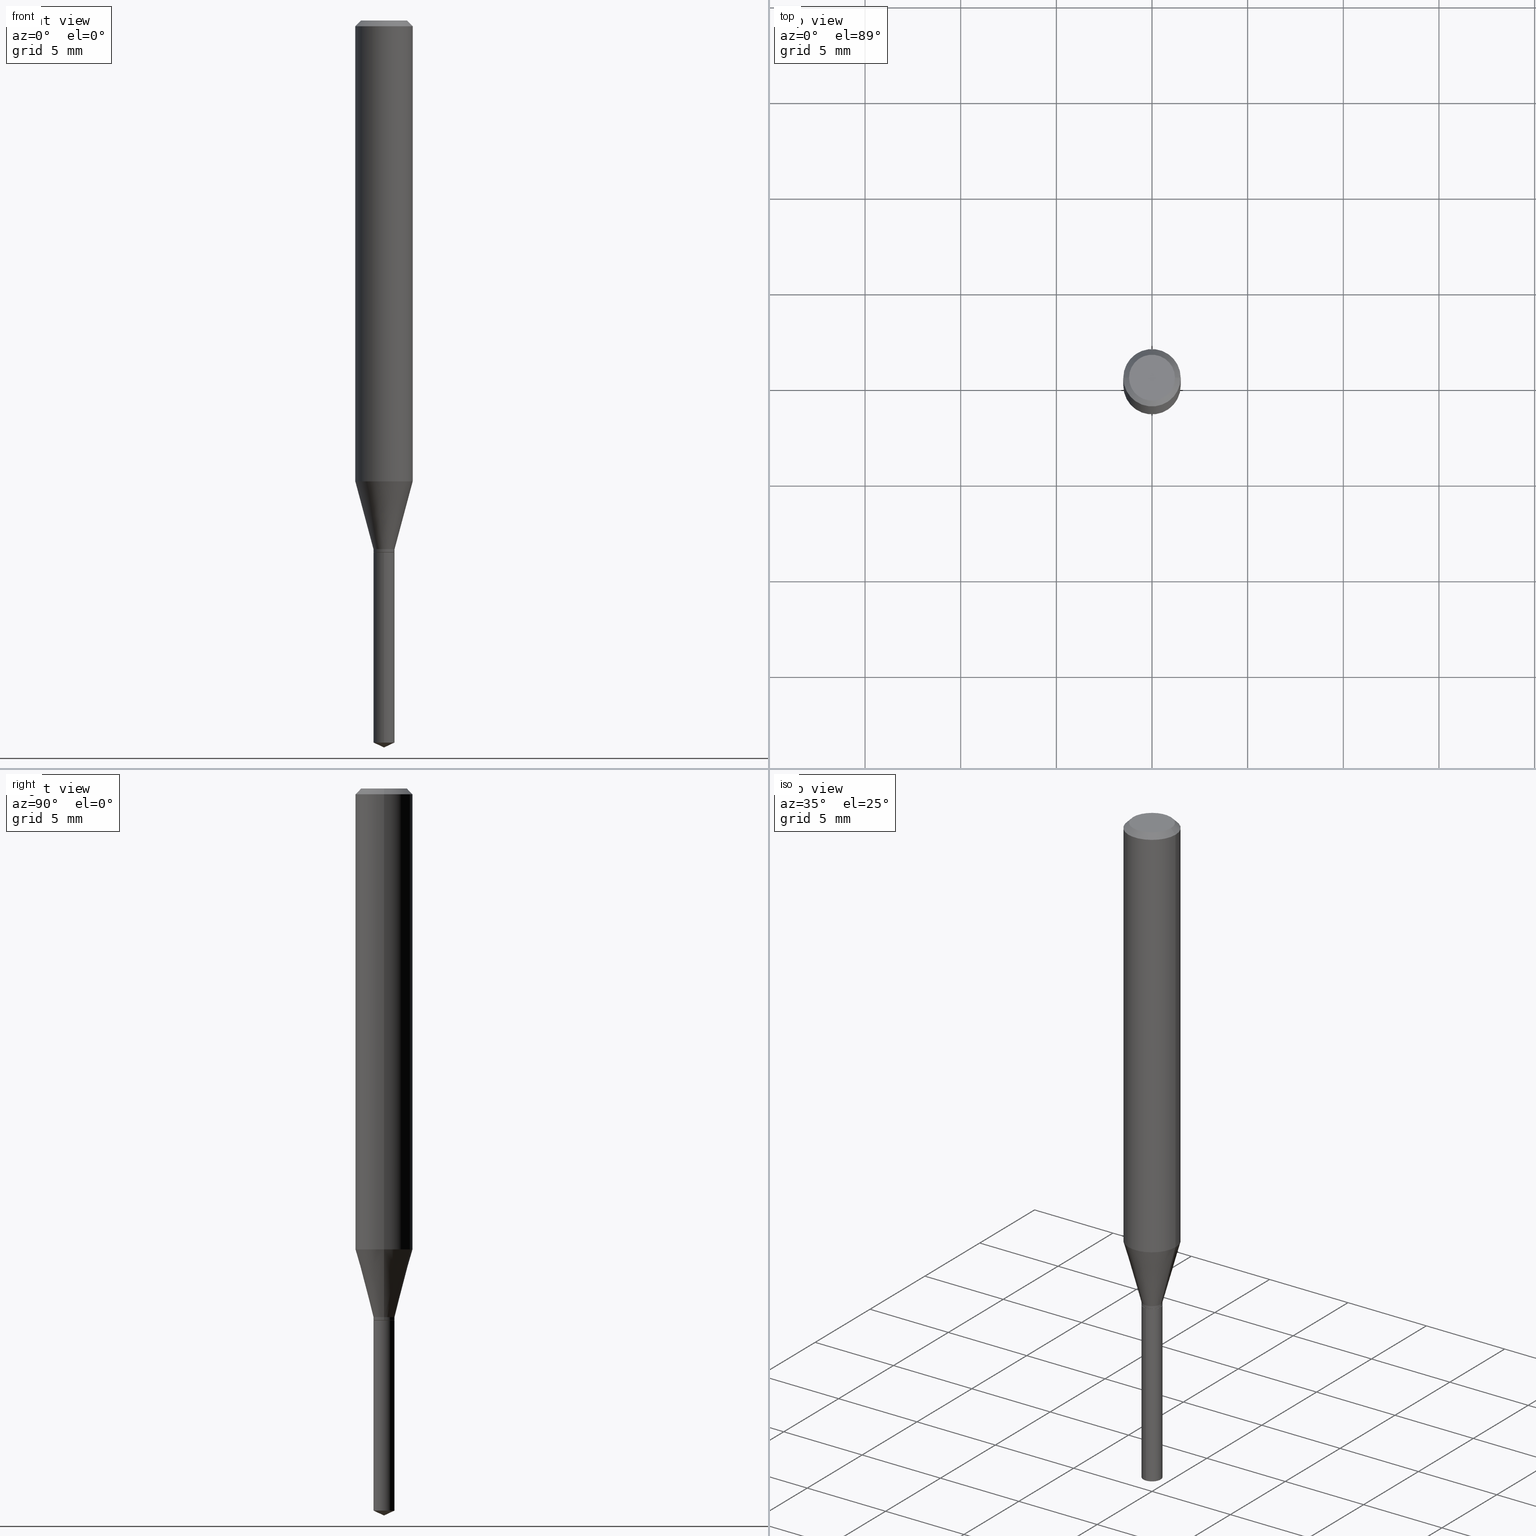
[diagram: canonical four-view strip — front | top / right | iso, engineering-drawing reading convention]
A machine part, canonical four-view strip (front | top / right | iso — engineering-drawing reading convention). The complete STEP part file that produces these views, byte-faithful:
ISO-10303-21;
HEADER;
FILE_DESCRIPTION (( 'STEP AP203' ),
    '1' );
FILE_NAME ('07492.STEP',
    '2024-04-23T22:03:44',
    ( '' ),
    ( '' ),
    'SwSTEP 2.0',
    'SolidWorks 2023',
    '' );
FILE_SCHEMA (( 'CONFIG_CONTROL_DESIGN' ));
ENDSEC;

DATA;
#1 = APPLICATION_CONTEXT ( 'configuration controlled 3d designs of mechanical parts and assemblies' ) ;
#2 = DIRECTION ( 'NONE',  ( 0.7071067811865454633, -7.319954787623248157E-15, -0.7071067811865495711 ) ) ;
#3 = CARTESIAN_POINT ( 'NONE',  ( 2.675342873966538993E-29, -3.819680584694400481E-15, -1.093999999999999861 ) ) ;
#4 = EDGE_CURVE ( 'NONE', #451, #399, #379, .T. ) ;
#5 = AXIS2_PLACEMENT_3D ( 'NONE', #93, #465, #201 ) ;
#6 = FACE_OUTER_BOUND ( 'NONE', #94, .T. ) ;
#7 = DIRECTION ( 'NONE',  ( -2.445470214571802116E-29, 3.491479321953280158E-15, 1.000000000000000000 ) ) ;
#8 = SECURITY_CLASSIFICATION_LEVEL ( 'unclassified' ) ;
#9 = CYLINDRICAL_SURFACE ( 'NONE', #296, 0.02165000000000000258 ) ;
#10 = ORIENTED_EDGE ( 'NONE', *, *, #193, .T. ) ;
#11 = CIRCLE ( 'NONE', #335, 0.02165000000000000258 ) ;
#12 = VECTOR ( 'NONE', #354, 39.37007874015748854 ) ;
#13 = CC_DESIGN_PERSON_AND_ORGANIZATION_ASSIGNMENT ( #431, #50, ( #436 ) ) ;
#14 = DIRECTION ( 'NONE',  ( 1.000000000000000000, -6.982962677686266711E-15, 0.000000000000000000 ) ) ;
#15 = ORIENTED_EDGE ( 'NONE', *, *, #485, .F. ) ;
#16 = CARTESIAN_POINT ( 'NONE',  ( -0.02165000000000000258, -3.655373638385810145E-15, -1.093999999999999861 ) ) ;
#17 = ORIENTED_EDGE ( 'NONE', *, *, #95, .F. ) ;
#18 = EDGE_CURVE ( 'NONE', #301, #359, #177, .T. ) ;
#19 = FACE_OUTER_BOUND ( 'NONE', #125, .T. ) ;
#20 = ORIENTED_EDGE ( 'NONE', *, *, #27, .T. ) ;
#21 = EDGE_CURVE ( 'NONE', #301, #399, #88, .T. ) ;
#22 = VECTOR ( 'NONE', #67, 39.37007874015748143 ) ;
#23 = CARTESIAN_POINT ( 'NONE',  ( 4.132873053354867254E-48, -5.900647395337818946E-34, -1.690012582823346072E-19 ) ) ;
#24 = AXIS2_PLACEMENT_3D ( 'NONE', #120, #424, #151 ) ;
#25 = AXIS2_PLACEMENT_3D ( 'NONE', #430, #91, #470 ) ;
#26 = ORIENTED_EDGE ( 'NONE', *, *, #107, .F. ) ;
#27 = EDGE_CURVE ( 'NONE', #411, #396, #64, .T. ) ;
#28 = DIRECTION ( 'NONE',  ( 1.000000000000000000, -6.982962677686266711E-15, 4.876176775795936353E-29 ) ) ;
#29 = ORIENTED_EDGE ( 'NONE', *, *, #230, .F. ) ;
#30 = ORIENTED_EDGE ( 'NONE', *, *, #425, .F. ) ;
#31 = VECTOR ( 'NONE', #249, 39.37007874015748143 ) ;
#32 = AXIS2_PLACEMENT_3D ( 'NONE', #268, #185, #37 ) ;
#33 = AXIS2_PLACEMENT_3D ( 'NONE', #105, #417, #369 ) ;
#34 = DIRECTION ( 'NONE',  ( -2.445468806185136597E-29, 3.491481338843145583E-15, 1.000000000000000000 ) ) ;
#35 = DIRECTION ( 'NONE',  ( 6.439704144417045341E-15, 0.9063077870366544886, 0.4226182617406898934 ) ) ;
#36 = CARTESIAN_POINT ( 'NONE',  ( 0.04724000000000000421, -3.852183633974369838E-16, -3.380025165621689721E-19 ) ) ;
#37 = DIRECTION ( 'NONE',  ( -6.982962677686265922E-15, -1.000000000000000000, 0.000000000000000000 ) ) ;
#38 = APPROVAL_ROLE ( '' ) ;
#39 = DIRECTION ( 'NONE',  ( 1.000000000000000000, -6.982962677686265922E-15, 4.876176775795935793E-29 ) ) ;
#40 = CONICAL_SURFACE ( 'NONE', #162, 84.42940631927551465, 1.134464013796321336 ) ;
#41 = AXIS2_PLACEMENT_3D ( 'NONE', #476, #73, #101 ) ;
#42 = DIRECTION ( 'NONE',  ( -2.445470214571802116E-29, 3.491479321953280158E-15, 1.000000000000000000 ) ) ;
#43 = EDGE_CURVE ( 'NONE', #250, #411, #219, .T. ) ;
#44 = CARTESIAN_POINT ( 'NONE',  ( 2.660670061129428738E-29, -3.798731696661342438E-15, -1.088000000000000078 ) ) ;
#45 = CARTESIAN_POINT ( 'NONE',  ( 0.000000000000000000, 0.000000000000000000, 0.000000000000000000 ) ) ;
#46 = DIRECTION ( 'NONE',  ( 1.000000000000000000, -6.982962677686267499E-15, 0.000000000000000000 ) ) ;
#47 = MECHANICAL_CONTEXT ( 'NONE', #1, 'mechanical' ) ;
#48 = DIRECTION ( 'NONE',  ( -6.982962677686265922E-15, -1.000000000000000000, 6.309117768277745325E-15 ) ) ;
#49 = ORIENTED_EDGE ( 'NONE', *, *, #27, .F. ) ;
#50 = PERSON_AND_ORGANIZATION_ROLE ( 'creator' ) ;
#51 = EDGE_LOOP ( 'NONE', ( #26, #213, #264, #17 ) ) ;
#52 = APPROVAL_DATE_TIME ( #261, #118 ) ;
#53 = CONICAL_SURFACE ( 'NONE', #308, 0.02164999999999999564, 0.2617993877991499629 ) ;
#54 = AXIS2_PLACEMENT_3D ( 'NONE', #380, #34, #144 ) ;
#55 = FACE_OUTER_BOUND ( 'NONE', #471, .T. ) ;
#56 = ORIENTED_EDGE ( 'NONE', *, *, #244, .T. ) ;
#57 = CALENDAR_DATE ( 2024, 23, 4 ) ;
#58 = DIRECTION ( 'NONE',  ( -2.445468806185136597E-29, 3.491481338843145583E-15, 1.000000000000000000 ) ) ;
#59 = ORIENTED_EDGE ( 'NONE', *, *, #414, .F. ) ;
#60 = DIRECTION ( 'NONE',  ( 1.000000000000000000, -6.982962677686269866E-15, 0.000000000000000000 ) ) ;
#61 = ORIENTED_EDGE ( 'NONE', *, *, #409, .T. ) ;
#62 = VECTOR ( 'NONE', #156, 39.37007874015748143 ) ;
#63 = CARTESIAN_POINT ( 'NONE',  ( -0.05905000000000011628, -2.891819784135979347E-15, -0.9484212997969238002 ) ) ;
#64 = LINE ( 'NONE', #453, #138 ) ;
#65 = EDGE_CURVE ( 'NONE', #257, #250, #376, .T. ) ;
#66 = ADVANCED_BREP_SHAPE_REPRESENTATION ( '07492', ( #83, #401, #124 ), #368 ) ;
#67 = DIRECTION ( 'NONE',  ( -2.445470214571802396E-29, 3.491479321953280158E-15, 1.000000000000000000 ) ) ;
#68 = CARTESIAN_POINT ( 'NONE',  ( -0.02164999999999999564, -3.644899194369280335E-15, -1.088000000000000078 ) ) ;
#69 = DIRECTION ( 'NONE',  ( -2.445470214571802116E-29, 3.491479321953280158E-15, 1.000000000000000000 ) ) ;
#70 = EDGE_CURVE ( 'NONE', #399, #375, #298, .T. ) ;
#71 = VERTEX_POINT ( 'NONE', #137 ) ;
#72 = CC_DESIGN_APPROVAL ( #118, ( #189 ) ) ;
#73 = DIRECTION ( 'NONE',  ( 2.445470214571801836E-29, -3.491479321953280158E-15, -1.000000000000000000 ) ) ;
#74 = CARTESIAN_POINT ( 'NONE',  ( 3.658668015054778287E-29, -5.223602213574301462E-15, -1.496099999999999985 ) ) ;
#75 = PRODUCT_RELATED_PRODUCT_CATEGORY ( 'detail', '', ( #293 ) ) ;
#76 = CALENDAR_DATE ( 2024, 23, 4 ) ;
#77 = LINE ( 'NONE', #231, #31 ) ;
#78 = PERSON_AND_ORGANIZATION_ROLE ( 'creator' ) ;
#79 = DIRECTION ( 'NONE',  ( -6.982962677686267499E-15, -1.000000000000000000, 3.520397390770404961E-15 ) ) ;
#80 = AXIS2_PLACEMENT_3D ( 'NONE', #317, #204, #99 ) ;
#81 = LOCAL_TIME ( 18, 3, 44.00000000000000000, #245 ) ;
#82 = ADVANCED_FACE ( 'NONE', ( #445 ), #454, .T. ) ;
#83 = MANIFOLD_SOLID_BREP ( 'Body-Move/Copy2[1]', #194 ) ;
#84 = FACE_OUTER_BOUND ( 'NONE', #183, .T. ) ;
#85 = LINE ( 'NONE', #234, #383 ) ;
#86 = LINE ( 'NONE', #459, #412 ) ;
#87 = ADVANCED_FACE ( 'NONE', ( #6 ), #130, .T. ) ;
#88 = CIRCLE ( 'NONE', #32, 0.02164999999999999564 ) ;
#89 = DIRECTION ( 'NONE',  ( 0.000000000000000000, 0.000000000000000000, 1.000000000000000000 ) ) ;
#90 = CARTESIAN_POINT ( 'NONE',  ( -1.511811419718713449E-16, -0.02165000000000518940, -1.486004439200944383 ) ) ;
#91 = DIRECTION ( 'NONE',  ( -2.445468806185136597E-29, 3.491481338843145583E-15, 1.000000000000000000 ) ) ;
#92 = VERTEX_POINT ( 'NONE', #382 ) ;
#93 = CARTESIAN_POINT ( 'NONE',  ( 8.265746106709734507E-48, -1.180129479067563789E-33, -3.380025165646692144E-19 ) ) ;
#94 = EDGE_LOOP ( 'NONE', ( #255, #305, #15 ) ) ;
#95 = EDGE_CURVE ( 'NONE', #355, #71, #148, .T. ) ;
#96 = CIRCLE ( 'NONE', #33, 0.04724000000000000421 ) ;
#97 = CARTESIAN_POINT ( 'NONE',  ( 2.660670061129428738E-29, -3.798731696661342438E-15, -1.088000000000000078 ) ) ;
#98 = ORIENTED_EDGE ( 'NONE', *, *, #262, .T. ) ;
#99 = DIRECTION ( 'NONE',  ( 1.000000000000000000, -6.982962677686268288E-15, 0.000000000000000000 ) ) ;
#100 = VERTEX_POINT ( 'NONE', #426 ) ;
#101 = DIRECTION ( 'NONE',  ( 6.982962677686265922E-15, 1.000000000000000000, -3.491479321953280158E-15 ) ) ;
#102 = ORIENTED_EDGE ( 'NONE', *, *, #203, .T. ) ;
#103 = AXIS2_PLACEMENT_3D ( 'NONE', #457, #153, #158 ) ;
#104 = ORIENTED_EDGE ( 'NONE', *, *, #43, .F. ) ;
#105 = CARTESIAN_POINT ( 'NONE',  ( 8.265746106709734507E-48, -1.180129479067563789E-33, -3.380025165646692144E-19 ) ) ;
#106 = ORIENTED_EDGE ( 'NONE', *, *, #230, .T. ) ;
#107 = EDGE_CURVE ( 'NONE', #338, #355, #85, .T. ) ;
#108 = APPLICATION_CONTEXT ( 'configuration controlled 3d designs of mechanical parts and assemblies' ) ;
#109 = ORIENTED_EDGE ( 'NONE', *, *, #4, .T. ) ;
#110 = DIRECTION ( 'NONE',  ( -2.445468806185136877E-29, 3.491481338843145188E-15, 1.000000000000000000 ) ) ;
#111 = CIRCLE ( 'NONE', #141, 0.05905000000000011628 ) ;
#112 = APPLICATION_PROTOCOL_DEFINITION ( 'international standard', 'config_control_design', 1994, #108 ) ;
#113 = FACE_OUTER_BOUND ( 'NONE', #145, .T. ) ;
#114 = COORDINATED_UNIVERSAL_TIME_OFFSET ( 5, 0, .BEHIND. ) ;
#115 = DIRECTION ( 'NONE',  ( -2.445468806185136597E-29, 3.491481338843145583E-15, 1.000000000000000000 ) ) ;
#116 = ADVANCED_FACE ( 'NONE', ( #192 ), #152, .F. ) ;
#117 = DIRECTION ( 'NONE',  ( -2.445468806185136597E-29, 3.491481338843145583E-15, 1.000000000000000000 ) ) ;
#118 = APPROVAL ( #258, 'UNSPECIFIED' ) ;
#119 = DIRECTION ( 'NONE',  ( -1.000000000000000000, 6.982962677686265922E-15, 0.000000000000000000 ) ) ;
#120 = CARTESIAN_POINT ( 'NONE',  ( 2.676565608369632355E-29, -3.821426325363822773E-15, -1.094500000000000028 ) ) ;
#121 = CARTESIAN_POINT ( 'NONE',  ( -0.02114999999999999172, -3.668497309576450368E-15, -1.094500000000000028 ) ) ;
#122 = DATE_AND_TIME ( #466, #290 ) ;
#123 = APPROVAL_PERSON_ORGANIZATION ( #394, #227, #38 ) ;
#124 = AXIS2_PLACEMENT_3D ( 'NONE', #45, #89, #285 ) ;
#125 = EDGE_LOOP ( 'NONE', ( #221, #61 ) ) ;
#126 = DESIGN_CONTEXT ( 'detailed design', #108, 'design' ) ;
#127 = DIRECTION ( 'NONE',  ( -1.000000000000000000, 6.982962677686265922E-15, -4.876176775795935793E-29 ) ) ;
#128 = CARTESIAN_POINT ( 'NONE',  ( -0.02164999999999999564, -3.655373638385810145E-15, -1.088000000000000078 ) ) ;
#129 = SHAPE_DEFINITION_REPRESENTATION ( #487, #66 ) ;
#130 = CONICAL_SURFACE ( 'NONE', #178, 84.42940631927551465, 1.134464013796321336 ) ;
#131 = FACE_OUTER_BOUND ( 'NONE', #477, .T. ) ;
#132 = EDGE_LOOP ( 'NONE', ( #10, #167 ) ) ;
#133 = EDGE_CURVE ( 'NONE', #71, #355, #11, .T. ) ;
#134 = PLANE ( 'NONE',  #41 ) ;
#135 = ORIENTED_EDGE ( 'NONE', *, *, #65, .F. ) ;
#136 = DIRECTION ( 'NONE',  ( 1.000000000000000000, -6.982962677686269866E-15, 0.000000000000000000 ) ) ;
#137 = CARTESIAN_POINT ( 'NONE',  ( 0.02165000000000000258, -3.970861726666308212E-15, -1.093999999999999861 ) ) ;
#138 = VECTOR ( 'NONE', #110, 39.37007874015748143 ) ;
#139 = CONICAL_SURFACE ( 'NONE', #103, 0.05905000000000000526, 0.7853981633974453924 ) ;
#140 = CARTESIAN_POINT ( 'NONE',  ( 3.658664905062460986E-29, -5.223606628546217219E-15, -1.496099999999999985 ) ) ;
#141 = AXIS2_PLACEMENT_3D ( 'NONE', #441, #58, #14 ) ;
#142 = ORIENTED_EDGE ( 'NONE', *, *, #95, .T. ) ;
#143 = EDGE_CURVE ( 'NONE', #355, #250, #421, .T. ) ;
#144 = DIRECTION ( 'NONE',  ( 1.000000000000000000, -6.982962677686269077E-15, 0.000000000000000000 ) ) ;
#145 = EDGE_LOOP ( 'NONE', ( #361, #109, #147 ) ) ;
#146 = ORIENTED_EDGE ( 'NONE', *, *, #409, .F. ) ;
#147 = ORIENTED_EDGE ( 'NONE', *, *, #21, .F. ) ;
#148 = CIRCLE ( 'NONE', #419, 0.02165000000000000258 ) ;
#149 = CONICAL_SURFACE ( 'NONE', #25, 0.02114999999999999172, 0.7853981633972860754 ) ;
#150 = ADVANCED_FACE ( 'NONE', ( #84 ), #306, .T. ) ;
#151 = DIRECTION ( 'NONE',  ( 1.000000000000000000, -6.982962677686269077E-15, 0.000000000000000000 ) ) ;
#152 = PLANE ( 'NONE',  #197 ) ;
#153 = DIRECTION ( 'NONE',  ( 2.445468806185136597E-29, -3.491481338843145583E-15, -1.000000000000000000 ) ) ;
#154 = CIRCLE ( 'NONE', #187, 0.05905000000000011628 ) ;
#155 = VECTOR ( 'NONE', #444, 39.37007874015748854 ) ;
#156 = DIRECTION ( 'NONE',  ( -2.445468806185136877E-29, 3.491481338843145188E-15, 1.000000000000000000 ) ) ;
#157 = LENGTH_MEASURE_WITH_UNIT ( LENGTH_MEASURE( 0.02539999999999999897 ), #328 );
#158 = DIRECTION ( 'NONE',  ( -1.000000000000000000, 6.982962677686265922E-15, 0.000000000000000000 ) ) ;
#159 = APPLICATION_PROTOCOL_DEFINITION ( 'international standard', 'config_control_design', 1994, #1 ) ;
#160 = CARTESIAN_POINT ( 'NONE',  ( 2.676565608369631794E-29, -3.821426325363822773E-15, -1.094499999999999806 ) ) ;
#161 = ORIENTED_EDGE ( 'NONE', *, *, #107, .T. ) ;
#162 = AXIS2_PLACEMENT_3D ( 'NONE', #388, #352, #269 ) ;
#163 = APPROVAL_PERSON_ORGANIZATION ( #397, #349, #343 ) ;
#164 = CARTESIAN_POINT ( 'NONE',  ( 0.02164999999999999564, -3.949912838633250169E-15, -1.088000000000000078 ) ) ;
#165 = EDGE_CURVE ( 'NONE', #250, #257, #318, .T. ) ;
#166 = CARTESIAN_POINT ( 'NONE',  ( 2.888098660104664642E-31, -4.123439461173780879E-17, -0.01181000000000007565 ) ) ;
#167 = ORIENTED_EDGE ( 'NONE', *, *, #425, .T. ) ;
#168 = DIRECTION ( 'NONE',  ( 1.000000000000000000, -6.982962677686267499E-15, 4.876176775795935232E-29 ) ) ;
#169 = PERSON_AND_ORGANIZATION ( #210, #344 ) ;
#170 = EDGE_CURVE ( 'NONE', #303, #396, #490, .T. ) ;
#171 = CIRCLE ( 'NONE', #304, 0.02114999999999999172 ) ;
#172 = CARTESIAN_POINT ( 'NONE',  ( 0.000000000000000000, 0.000000000000000000, 0.000000000000000000 ) ) ;
#173 = ORIENTED_EDGE ( 'NONE', *, *, #299, .T. ) ;
#174 = DIRECTION ( 'NONE',  ( -6.982962677686265922E-15, -1.000000000000000000, 6.309117768277745325E-15 ) ) ;
#175 = CARTESIAN_POINT ( 'NONE',  ( 1.538325022920883819E-16, 0.02164999999999617578, -1.094500000000000028 ) ) ;
#176 = CARTESIAN_POINT ( 'NONE',  ( 3.658667988020872822E-29, -5.223602213574301462E-15, -1.496099999999999985 ) ) ;
#177 = LINE ( 'NONE', #229, #22 ) ;
#178 = AXIS2_PLACEMENT_3D ( 'NONE', #196, #7, #79 ) ;
#179 = LINE ( 'NONE', #478, #280 ) ;
#180 = CIRCLE ( 'NONE', #5, 0.04724000000000000421 ) ;
#181 = DIRECTION ( 'NONE',  ( -0.2588190451025212391, 5.211531920934549464E-15, 0.9659258262890679791 ) ) ;
#182 = ADVANCED_FACE ( 'NONE', ( #350 ), #139, .T. ) ;
#183 = EDGE_LOOP ( 'NONE', ( #49, #418, #56, #433 ) ) ;
#184 = CALENDAR_DATE ( 2024, 23, 4 ) ;
#185 = DIRECTION ( 'NONE',  ( -2.445470214571802116E-29, 3.491479321953280158E-15, 1.000000000000000000 ) ) ;
#186 = COORDINATED_UNIVERSAL_TIME_OFFSET ( 5, 0, .BEHIND. ) ;
#187 = AXIS2_PLACEMENT_3D ( 'NONE', #314, #117, #275 ) ;
#188 = CARTESIAN_POINT ( 'NONE',  ( -0.02165000000000000258, 1.538325022920617085E-16, -1.064949447040187027E-30 ) ) ;
#189 = SECURITY_CLASSIFICATION ( '', '', #8 ) ;
#190 = CC_DESIGN_DATE_AND_TIME_ASSIGNMENT ( #122, #252, ( #189 ) ) ;
#191 = CARTESIAN_POINT ( 'NONE',  ( -0.05905000000000000526, 3.711095515056362547E-16, -0.01181000000000007565 ) ) ;
#192 = FACE_OUTER_BOUND ( 'NONE', #488, .T. ) ;
#193 = EDGE_CURVE ( 'NONE', #359, #375, #206, .T. ) ;
#194 = CLOSED_SHELL ( 'NONE', ( #274, #236, #87, #283, #384 ) ) ;
#195 = DIMENSIONAL_EXPONENTS ( 1.000000000000000000, 0.000000000000000000, 0.000000000000000000, 0.000000000000000000, 0.000000000000000000, 0.000000000000000000, 0.000000000000000000 ) ;
#196 = CARTESIAN_POINT ( 'NONE',  ( -9.261968845786000133E-28, 1.322362114038720264E-13, 37.87397874015748300 ) ) ;
#197 = AXIS2_PLACEMENT_3D ( 'NONE', #386, #276, #39 ) ;
#198 = DATE_AND_TIME ( #76, #81 ) ;
#199 = DIRECTION ( 'NONE',  ( -2.445468806185136877E-29, 3.491481338843145188E-15, 1.000000000000000000 ) ) ;
#200 = DATE_TIME_ROLE ( 'creation_date' ) ;
#201 = DIRECTION ( 'NONE',  ( 1.000000000000000000, -6.982962677686266711E-15, 4.876185090822587894E-29 ) ) ;
#202 = ORIENTED_EDGE ( 'NONE', *, *, #43, .T. ) ;
#203 = EDGE_CURVE ( 'NONE', #456, #100, #272, .T. ) ;
#204 = DIRECTION ( 'NONE',  ( -2.445468806185136597E-29, 3.491481338843145583E-15, 1.000000000000000000 ) ) ;
#205 = ORIENTED_EDGE ( 'NONE', *, *, #143, .T. ) ;
#206 = CIRCLE ( 'NONE', #480, 0.02164999999999999564 ) ;
#207 = AXIS2_PLACEMENT_3D ( 'NONE', #289, #366, #437 ) ;
#208 = EDGE_CURVE ( 'NONE', #71, #257, #86, .T. ) ;
#209 = PLANE ( 'NONE',  #455 ) ;
#210 = PERSON ( 'UNSPECIFIED', 'UNSPECIFIED', 'UNSPECIFIED', ('UNSPECIFIED'), ('UNSPECIFIED'), ('UNSPECIFIED') ) ;
#211 = ORIENTED_EDGE ( 'NONE', *, *, #346, .F. ) ;
#212 = CARTESIAN_POINT ( 'NONE',  ( -1.511811419718808852E-16, -0.02165000000000381897, -1.094499999999999806 ) ) ;
#213 = ORIENTED_EDGE ( 'NONE', *, *, #427, .T. ) ;
#214 = DIRECTION ( 'NONE',  ( -2.445468806185136597E-29, 3.491481338843145583E-15, 1.000000000000000000 ) ) ;
#215 = VECTOR ( 'NONE', #35, 39.37007874015748854 ) ;
#216 = ORIENTED_EDGE ( 'NONE', *, *, #170, .T. ) ;
#217 = AXIS2_PLACEMENT_3D ( 'NONE', #370, #420, #381 ) ;
#218 = CIRCLE ( 'NONE', #54, 0.02114999999999999172 ) ;
#219 = LINE ( 'NONE', #68, #438 ) ;
#220 = CARTESIAN_POINT ( 'NONE',  ( 1.538325022920980454E-16, 0.02164999999999617578, -1.094500000000000028 ) ) ;
#221 = ORIENTED_EDGE ( 'NONE', *, *, #330, .T. ) ;
#222 = ADVANCED_FACE ( 'NONE', ( #462 ), #460, .T. ) ;
#223 = FACE_OUTER_BOUND ( 'NONE', #132, .T. ) ;
#224 = EDGE_LOOP ( 'NONE', ( #324, #479, #284, #292 ) ) ;
#225 = AXIS2_PLACEMENT_3D ( 'NONE', #428, #239, #387 ) ;
#226 = LOCAL_TIME ( 18, 3, 44.00000000000000000, #114 ) ;
#227 = APPROVAL ( #248, 'UNSPECIFIED' ) ;
#228 = ORIENTED_EDGE ( 'NONE', *, *, #244, .F. ) ;
#229 = CARTESIAN_POINT ( 'NONE',  ( -1.511811419718808852E-16, -0.02165000000000381897, -1.094499999999999806 ) ) ;
#230 = EDGE_CURVE ( 'NONE', #92, #411, #154, .T. ) ;
#231 = CARTESIAN_POINT ( 'NONE',  ( 0.05905000000000006771, -4.123439461173745257E-16, 2.879382386107503723E-30 ) ) ;
#232 = PERSON_AND_ORGANIZATION ( #210, #344 ) ;
#233 = CIRCLE ( 'NONE', #80, 0.05905000000000000526 ) ;
#234 = CARTESIAN_POINT ( 'NONE',  ( -0.02114999999999999172, -3.671146536750561569E-15, -1.094500000000000028 ) ) ;
#235 = AXIS2_PLACEMENT_3D ( 'NONE', #160, #291, #408 ) ;
#236 = ADVANCED_FACE ( 'NONE', ( #113 ), #40, .T. ) ;
#237 = CARTESIAN_POINT ( 'NONE',  ( 0.05905000000000000526, -4.463468013801467941E-16, -0.01181000000000007565 ) ) ;
#238 = DIRECTION ( 'NONE',  ( 1.000000000000000000, -6.982962677686269866E-15, 0.000000000000000000 ) ) ;
#239 = DIRECTION ( 'NONE',  ( -2.445468806185136597E-29, 3.491481338843145583E-15, 1.000000000000000000 ) ) ;
#240 = EDGE_LOOP ( 'NONE', ( #106, #20, #372, #228 ) ) ;
#241 = AXIS2_PLACEMENT_3D ( 'NONE', #97, #474, #136 ) ;
#242 = PERSON_AND_ORGANIZATION ( #210, #344 ) ;
#243 = CARTESIAN_POINT ( 'NONE',  ( -0.04724000000000000421, 3.504923541997677355E-16, -3.380025165670481712E-19 ) ) ;
#244 = EDGE_CURVE ( 'NONE', #92, #100, #77, .T. ) ;
#245 = COORDINATED_UNIVERSAL_TIME_OFFSET ( 5, 0, .BEHIND. ) ;
#246 = FACE_OUTER_BOUND ( 'NONE', #322, .T. ) ;
#247 = EDGE_LOOP ( 'NONE', ( #449, #475, #329, #30 ) ) ;
#248 = APPROVAL_STATUS ( 'not_yet_approved' ) ;
#249 = DIRECTION ( 'NONE',  ( -2.445468806185136877E-29, 3.491481338843145188E-15, 1.000000000000000000 ) ) ;
#250 = VERTEX_POINT ( 'NONE', #128 ) ;
#251 = AXIS2_PLACEMENT_3D ( 'NONE', #463, #309, #119 ) ;
#252 = DATE_TIME_ROLE ( 'classification_date' ) ;
#253 = ADVANCED_FACE ( 'NONE', ( #55 ), #9, .T. ) ;
#254 = CYLINDRICAL_SURFACE ( 'NONE', #235, 0.02164999999999999564 ) ;
#255 = ORIENTED_EDGE ( 'NONE', *, *, #4, .F. ) ;
#256 = CARTESIAN_POINT ( 'NONE',  ( 2.660670061129428738E-29, -3.798731696661342438E-15, -1.088000000000000078 ) ) ;
#257 = VERTEX_POINT ( 'NONE', #164 ) ;
#258 = APPROVAL_STATUS ( 'not_yet_approved' ) ;
#259 = DIRECTION ( 'NONE',  ( -2.445470214571802116E-29, 3.491479321953280158E-15, 1.000000000000000000 ) ) ;
#260 = EDGE_LOOP ( 'NONE', ( #146, #102, #173, #334 ) ) ;
#261 = DATE_AND_TIME ( #57, #423 ) ;
#262 = EDGE_CURVE ( 'NONE', #396, #100, #233, .T. ) ;
#263 = EDGE_LOOP ( 'NONE', ( #469, #416, #216, #98 ) ) ;
#264 = ORIENTED_EDGE ( 'NONE', *, *, #414, .T. ) ;
#265 = VECTOR ( 'NONE', #2, 39.37007874015748143 ) ;
#266 = CARTESIAN_POINT ( 'NONE',  ( 3.633978053308179170E-29, -5.188355979286834732E-15, -1.486004439200944383 ) ) ;
#267 = ADVANCED_FACE ( 'NONE', ( #131 ), #53, .T. ) ;
#268 = CARTESIAN_POINT ( 'NONE',  ( 3.633978053308179170E-29, -5.188355979286834732E-15, -1.486004439200944383 ) ) ;
#269 = DIRECTION ( 'NONE',  ( -6.982962677686267499E-15, -1.000000000000000000, 3.520397390770404961E-15 ) ) ;
#270 =( NAMED_UNIT ( * ) SI_UNIT ( $, .STERADIAN. ) SOLID_ANGLE_UNIT ( ) );
#271 = DIRECTION ( 'NONE',  ( -2.445468806185136597E-29, 3.491481338843145583E-15, 1.000000000000000000 ) ) ;
#272 = LINE ( 'NONE', #237, #265 ) ;
#273 = AXIS2_PLACEMENT_3D ( 'NONE', #357, #402, #48 ) ;
#274 = ADVANCED_FACE ( 'NONE', ( #326 ), #432, .T. ) ;
#275 = DIRECTION ( 'NONE',  ( 1.000000000000000000, -6.982962677686266711E-15, 0.000000000000000000 ) ) ;
#276 = DIRECTION ( 'NONE',  ( -2.438088387897960049E-29, 3.491481338843145188E-15, 1.000000000000000000 ) ) ;
#277 = APPROVAL_STATUS ( 'not_yet_approved' ) ;
#278 = DIRECTION ( 'NONE',  ( -2.445468806185136597E-29, 3.491481338843145583E-15, 1.000000000000000000 ) ) ;
#279 = VECTOR ( 'NONE', #311, 39.37007874015748143 ) ;
#280 = VECTOR ( 'NONE', #452, 39.37007874015748854 ) ;
#281 = PERSON_AND_ORGANIZATION_ROLE ( 'design_owner' ) ;
#282 = FACE_OUTER_BOUND ( 'NONE', #247, .T. ) ;
#283 = ADVANCED_FACE ( 'NONE', ( #282 ), #254, .T. ) ;
#284 = ORIENTED_EDGE ( 'NONE', *, *, #193, .F. ) ;
#285 = DIRECTION ( 'NONE',  ( 1.000000000000000000, 0.000000000000000000, 0.000000000000000000 ) ) ;
#286 = CYLINDRICAL_SURFACE ( 'NONE', #207, 0.02165000000000000258 ) ;
#287 = CLOSED_SHELL ( 'NONE', ( #82, #182, #389, #374, #253, #325, #267, #150, #222, #295, #116, #302 ) ) ;
#288 = EDGE_CURVE ( 'NONE', #411, #92, #111, .T. ) ;
#289 = CARTESIAN_POINT ( 'NONE',  ( 0.000000000000000000, 0.000000000000000000, 0.000000000000000000 ) ) ;
#290 = LOCAL_TIME ( 18, 3, 44.00000000000000000, #315 ) ;
#291 = DIRECTION ( 'NONE',  ( -2.445470214571802116E-29, 3.491479321953280158E-15, 1.000000000000000000 ) ) ;
#292 = ORIENTED_EDGE ( 'NONE', *, *, #18, .F. ) ;
#293 = PRODUCT ( '07492', '07492', '', ( #47 ) ) ;
#294 = ORIENTED_EDGE ( 'NONE', *, *, #133, .T. ) ;
#295 = ADVANCED_FACE ( 'NONE', ( #19 ), #209, .F. ) ;
#296 = AXIS2_PLACEMENT_3D ( 'NONE', #172, #214, #168 ) ;
#297 = CARTESIAN_POINT ( 'NONE',  ( 0.02114999999999999172, -3.969115985996887497E-15, -1.094500000000000028 ) ) ;
#298 = LINE ( 'NONE', #175, #391 ) ;
#299 = EDGE_CURVE ( 'NONE', #100, #396, #393, .T. ) ;
#300 = CARTESIAN_POINT ( 'NONE',  ( 1.538325022920979961E-16, 0.02164999999999481575, -1.486004439200944383 ) ) ;
#301 = VERTEX_POINT ( 'NONE', #90 ) ;
#302 = ADVANCED_FACE ( 'NONE', ( #362 ), #149, .T. ) ;
#303 = VERTEX_POINT ( 'NONE', #243 ) ;
#304 = AXIS2_PLACEMENT_3D ( 'NONE', #472, #278, #468 ) ;
#305 = ORIENTED_EDGE ( 'NONE', *, *, #473, .T. ) ;
#306 = CYLINDRICAL_SURFACE ( 'NONE', #225, 0.05905000000000006771 ) ;
#307 = DIRECTION ( 'NONE',  ( -6.982962677686265922E-15, -1.000000000000000000, 6.309117768277745325E-15 ) ) ;
#308 = AXIS2_PLACEMENT_3D ( 'NONE', #256, #395, #60 ) ;
#309 = DIRECTION ( 'NONE',  ( 2.445468806185136597E-29, -3.491481338843145583E-15, -1.000000000000000000 ) ) ;
#310 = AXIS2_PLACEMENT_3D ( 'NONE', #482, #69, #174 ) ;
#311 = DIRECTION ( 'NONE',  ( -0.7071067811865454633, 2.468850131082235367E-15, -0.7071067811865495711 ) ) ;
#312 = CALENDAR_DATE ( 2024, 23, 4 ) ;
#313 = EDGE_CURVE ( 'NONE', #483, #338, #171, .T. ) ;
#314 = CARTESIAN_POINT ( 'NONE',  ( 2.319334703774938841E-29, -3.311395269602319629E-15, -0.9484212997969238002 ) ) ;
#315 = COORDINATED_UNIVERSAL_TIME_OFFSET ( 5, 0, .BEHIND. ) ;
#316 = CC_DESIGN_DATE_AND_TIME_ASSIGNMENT ( #356, #200, ( #436 ) ) ;
#317 = CARTESIAN_POINT ( 'NONE',  ( 2.888098660104664642E-31, -4.123439461173780879E-17, -0.01181000000000007565 ) ) ;
#318 = CIRCLE ( 'NONE', #403, 0.02164999999999999564 ) ;
#319 = ORIENTED_EDGE ( 'NONE', *, *, #427, .F. ) ;
#320 =( NAMED_UNIT ( * ) PLANE_ANGLE_UNIT ( ) SI_UNIT ( $, .RADIAN. ) );
#321 = DIRECTION ( 'NONE',  ( 2.438088387897960049E-29, -3.491481338843145188E-15, -1.000000000000000000 ) ) ;
#322 = EDGE_LOOP ( 'NONE', ( #407, #142, #405, #339 ) ) ;
#323 = FACE_OUTER_BOUND ( 'NONE', #342, .T. ) ;
#324 = ORIENTED_EDGE ( 'NONE', *, *, #21, .T. ) ;
#325 = ADVANCED_FACE ( 'NONE', ( #246 ), #286, .T. ) ;
#326 = FACE_OUTER_BOUND ( 'NONE', #224, .T. ) ;
#327 = ORIENTED_EDGE ( 'NONE', *, *, #165, .T. ) ;
#328 =( LENGTH_UNIT ( ) NAMED_UNIT ( * ) SI_UNIT ( $, .METRE. ) );
#329 = ORIENTED_EDGE ( 'NONE', *, *, #18, .T. ) ;
#330 = EDGE_CURVE ( 'NONE', #303, #456, #180, .T. ) ;
#331 = DIRECTION ( 'NONE',  ( -2.445470214571802396E-29, 3.491479321953280158E-15, 1.000000000000000000 ) ) ;
#332 = LINE ( 'NONE', #140, #155 ) ;
#333 = CC_DESIGN_PERSON_AND_ORGANIZATION_ASSIGNMENT ( #232, #390, ( #413 ) ) ;
#334 = ORIENTED_EDGE ( 'NONE', *, *, #170, .F. ) ;
#335 = AXIS2_PLACEMENT_3D ( 'NONE', #3, #115, #46 ) ;
#336 = AXIS2_PLACEMENT_3D ( 'NONE', #337, #373, #28 ) ;
#337 = CARTESIAN_POINT ( 'NONE',  ( 0.000000000000000000, 0.000000000000000000, 0.000000000000000000 ) ) ;
#338 = VERTEX_POINT ( 'NONE', #121 ) ;
#339 = ORIENTED_EDGE ( 'NONE', *, *, #165, .F. ) ;
#340 = CC_DESIGN_PERSON_AND_ORGANIZATION_ASSIGNMENT ( #242, #281, ( #293 ) ) ;
#341 = PERSON_AND_ORGANIZATION_ROLE ( 'classification_officer' ) ;
#342 = EDGE_LOOP ( 'NONE', ( #440, #202, #29, #211 ) ) ;
#343 = APPROVAL_ROLE ( '' ) ;
#344 = ORGANIZATION ( 'UNSPECIFIED', 'UNSPECIFIED', '' ) ;
#345 = CARTESIAN_POINT ( 'NONE',  ( 2.675342873966538993E-29, -3.819680584694400481E-15, -1.093999999999999861 ) ) ;
#346 = EDGE_CURVE ( 'NONE', #257, #92, #398, .T. ) ;
#347 = DIRECTION ( 'NONE',  ( -2.445468806185136597E-29, 3.491481338843145583E-15, 1.000000000000000000 ) ) ;
#348 = DIRECTION ( 'NONE',  ( 1.000000000000000000, -6.982962677686267499E-15, 0.000000000000000000 ) ) ;
#349 = APPROVAL ( #277, 'UNSPECIFIED' ) ;
#350 = FACE_OUTER_BOUND ( 'NONE', #260, .T. ) ;
#351 = PERSON_AND_ORGANIZATION ( #210, #344 ) ;
#352 = DIRECTION ( 'NONE',  ( -2.445470214571802116E-29, 3.491479321953280158E-15, 1.000000000000000000 ) ) ;
#353 = DATE_AND_TIME ( #184, #226 ) ;
#354 = DIRECTION ( 'NONE',  ( 0.2588190451025212391, 1.565188264969622362E-15, 0.9659258262890679791 ) ) ;
#355 = VERTEX_POINT ( 'NONE', #16 ) ;
#356 = DATE_AND_TIME ( #312, #439 ) ;
#357 = CARTESIAN_POINT ( 'NONE',  ( 2.676565608369631794E-29, -3.821426325363822773E-15, -1.094499999999999806 ) ) ;
#358 = CC_DESIGN_APPROVAL ( #349, ( #413 ) ) ;
#359 = VERTEX_POINT ( 'NONE', #212 ) ;
#360 = CARTESIAN_POINT ( 'NONE',  ( 0.02164999999999999564, -3.949912838633250169E-15, -1.088000000000000078 ) ) ;
#361 = ORIENTED_EDGE ( 'NONE', *, *, #473, .F. ) ;
#362 = FACE_OUTER_BOUND ( 'NONE', #51, .T. ) ;
#363 = CC_DESIGN_PERSON_AND_ORGANIZATION_ASSIGNMENT ( #351, #341, ( #189 ) ) ;
#364 = ORIENTED_EDGE ( 'NONE', *, *, #313, .T. ) ;
#365 = COORDINATED_UNIVERSAL_TIME_OFFSET ( 5, 0, .BEHIND. ) ;
#366 = DIRECTION ( 'NONE',  ( -2.445468806185136597E-29, 3.491481338843145583E-15, 1.000000000000000000 ) ) ;
#367 = ORIENTED_EDGE ( 'NONE', *, *, #133, .F. ) ;
#368 =( GEOMETRIC_REPRESENTATION_CONTEXT ( 3 ) GLOBAL_UNCERTAINTY_ASSIGNED_CONTEXT ( ( #371 ) ) GLOBAL_UNIT_ASSIGNED_CONTEXT ( ( #464, #320, #270 ) ) REPRESENTATION_CONTEXT ( 'NONE', 'WORKASPACE' ) );
#369 = DIRECTION ( 'NONE',  ( 1.000000000000000000, -6.982962677686266711E-15, 4.876185090822587894E-29 ) ) ;
#370 = CARTESIAN_POINT ( 'NONE',  ( 2.660670061129428738E-29, -3.798731696661342438E-15, -1.088000000000000078 ) ) ;
#371 = UNCERTAINTY_MEASURE_WITH_UNIT (LENGTH_MEASURE( 1.000000000000000082E-05 ), #464, 'distance_accuracy_value', 'NONE');
#372 = ORIENTED_EDGE ( 'NONE', *, *, #299, .F. ) ;
#373 = DIRECTION ( 'NONE',  ( -2.445468806185136597E-29, 3.491481338843145583E-15, 1.000000000000000000 ) ) ;
#374 = ADVANCED_FACE ( 'NONE', ( #323 ), #385, .T. ) ;
#375 = VERTEX_POINT ( 'NONE', #220 ) ;
#376 = CIRCLE ( 'NONE', #217, 0.02164999999999999564 ) ;
#377 = CIRCLE ( 'NONE', #310, 0.02164999999999999564 ) ;
#378 = FACE_OUTER_BOUND ( 'NONE', #240, .T. ) ;
#379 = LINE ( 'NONE', #74, #215 ) ;
#380 = CARTESIAN_POINT ( 'NONE',  ( 2.676565608369632355E-29, -3.821426325363822773E-15, -1.094500000000000028 ) ) ;
#381 = DIRECTION ( 'NONE',  ( 1.000000000000000000, -6.982962677686269866E-15, 0.000000000000000000 ) ) ;
#382 = CARTESIAN_POINT ( 'NONE',  ( 0.05905000000000011628, -3.723739215719695338E-15, -0.9484212997969238002 ) ) ;
#383 = VECTOR ( 'NONE', #422, 39.37007874015748854 ) ;
#384 = ADVANCED_FACE ( 'NONE', ( #223 ), #134, .F. ) ;
#385 = CONICAL_SURFACE ( 'NONE', #241, 0.02164999999999999564, 0.2617993877991499629 ) ;
#386 = CARTESIAN_POINT ( 'NONE',  ( -2.259394599611891373E-29, -1.089000228060149958E-14, -1.094500000000000028 ) ) ;
#387 = DIRECTION ( 'NONE',  ( 1.000000000000000000, -6.982962677686266711E-15, 4.876176775795936353E-29 ) ) ;
#388 = CARTESIAN_POINT ( 'NONE',  ( -9.261968845786000133E-28, 1.322362114038720264E-13, 37.87397874015748300 ) ) ;
#389 = ADVANCED_FACE ( 'NONE', ( #378 ), #448, .T. ) ;
#390 = PERSON_AND_ORGANIZATION_ROLE ( 'design_supplier' ) ;
#391 = VECTOR ( 'NONE', #331, 39.37007874015748143 ) ;
#392 = CARTESIAN_POINT ( 'NONE',  ( 2.676565608369631794E-29, -3.821426325363822773E-15, -1.094499999999999806 ) ) ;
#393 = CIRCLE ( 'NONE', #446, 0.05905000000000000526 ) ;
#394 = PERSON_AND_ORGANIZATION ( #210, #344 ) ;
#395 = DIRECTION ( 'NONE',  ( -2.445468806185136597E-29, 3.491481338843145583E-15, 1.000000000000000000 ) ) ;
#396 = VERTEX_POINT ( 'NONE', #410 ) ;
#397 = PERSON_AND_ORGANIZATION ( #210, #344 ) ;
#398 = LINE ( 'NONE', #360, #12 ) ;
#399 = VERTEX_POINT ( 'NONE', #300 ) ;
#400 = APPROVAL_DATE_TIME ( #198, #227 ) ;
#401 = MANIFOLD_SOLID_BREP ( 'Body-Move/Copy2[2]', #287 ) ;
#402 = DIRECTION ( 'NONE',  ( -2.445470214571802116E-29, 3.491479321953280158E-15, 1.000000000000000000 ) ) ;
#403 = AXIS2_PLACEMENT_3D ( 'NONE', #44, #347, #238 ) ;
#404 = CC_DESIGN_APPROVAL ( #227, ( #436 ) ) ;
#405 = ORIENTED_EDGE ( 'NONE', *, *, #208, .T. ) ;
#406 = DIRECTION ( 'NONE',  ( -2.445468806185136597E-29, 3.491481338843145583E-15, 1.000000000000000000 ) ) ;
#407 = ORIENTED_EDGE ( 'NONE', *, *, #143, .F. ) ;
#408 = DIRECTION ( 'NONE',  ( -6.982962677686265922E-15, -1.000000000000000000, 6.309117768277745325E-15 ) ) ;
#409 = EDGE_CURVE ( 'NONE', #456, #303, #96, .T. ) ;
#410 = CARTESIAN_POINT ( 'NONE',  ( -0.05905000000000000526, -1.256739346640688594E-15, -0.01181000000000007565 ) ) ;
#411 = VERTEX_POINT ( 'NONE', #63 ) ;
#412 = VECTOR ( 'NONE', #199, 39.37007874015748143 ) ;
#413 = PRODUCT_DEFINITION_FORMATION_WITH_SPECIFIED_SOURCE ( 'ANY', '', #293, .NOT_KNOWN. ) ;
#414 = EDGE_CURVE ( 'NONE', #483, #71, #179, .T. ) ;
#415 = ORIENTED_EDGE ( 'NONE', *, *, #346, .T. ) ;
#416 = ORIENTED_EDGE ( 'NONE', *, *, #330, .F. ) ;
#417 = DIRECTION ( 'NONE',  ( -2.445468806185136597E-29, 3.491481338843145583E-15, 1.000000000000000000 ) ) ;
#418 = ORIENTED_EDGE ( 'NONE', *, *, #288, .T. ) ;
#419 = AXIS2_PLACEMENT_3D ( 'NONE', #345, #271, #348 ) ;
#420 = DIRECTION ( 'NONE',  ( -2.445468806185136597E-29, 3.491481338843145583E-15, 1.000000000000000000 ) ) ;
#421 = LINE ( 'NONE', #188, #62 ) ;
#422 = DIRECTION ( 'NONE',  ( -0.7071067811864326647, 7.493145998869937642E-15, 0.7071067811866621478 ) ) ;
#423 = LOCAL_TIME ( 18, 3, 44.00000000000000000, #365 ) ;
#424 = DIRECTION ( 'NONE',  ( -2.445468806185136597E-29, 3.491481338843145583E-15, 1.000000000000000000 ) ) ;
#425 = EDGE_CURVE ( 'NONE', #375, #359, #377, .T. ) ;
#426 = CARTESIAN_POINT ( 'NONE',  ( 0.05905000000000000526, -4.535783407291119586E-16, -0.01181000000000007565 ) ) ;
#427 = EDGE_CURVE ( 'NONE', #338, #483, #218, .T. ) ;
#428 = CARTESIAN_POINT ( 'NONE',  ( 0.000000000000000000, 0.000000000000000000, 0.000000000000000000 ) ) ;
#429 = PERSON_AND_ORGANIZATION ( #210, #344 ) ;
#430 = CARTESIAN_POINT ( 'NONE',  ( 2.676565608369632355E-29, -3.821426325363822773E-15, -1.094500000000000028 ) ) ;
#431 = PERSON_AND_ORGANIZATION ( #210, #344 ) ;
#432 = CYLINDRICAL_SURFACE ( 'NONE', #273, 0.02164999999999999564 ) ;
#433 = ORIENTED_EDGE ( 'NONE', *, *, #262, .F. ) ;
#434 = DIRECTION ( 'NONE',  ( 1.000000000000000000, -6.982962677686268288E-15, 0.000000000000000000 ) ) ;
#435 = ORIENTED_EDGE ( 'NONE', *, *, #313, .F. ) ;
#436 = PRODUCT_DEFINITION ( 'UNKNOWN', '', #413, #126 ) ;
#437 = DIRECTION ( 'NONE',  ( 1.000000000000000000, -6.982962677686267499E-15, 4.876176775795935232E-29 ) ) ;
#438 = VECTOR ( 'NONE', #181, 39.37007874015748854 ) ;
#439 = LOCAL_TIME ( 18, 3, 44.00000000000000000, #186 ) ;
#440 = ORIENTED_EDGE ( 'NONE', *, *, #65, .T. ) ;
#441 = CARTESIAN_POINT ( 'NONE',  ( 2.319334703774938841E-29, -3.311395269602319629E-15, -0.9484212997969238002 ) ) ;
#442 = EDGE_LOOP ( 'NONE', ( #364, #161, #367, #59 ) ) ;
#443 = ORIENTED_EDGE ( 'NONE', *, *, #208, .F. ) ;
#444 = DIRECTION ( 'NONE',  ( -6.328713451373388311E-15, -0.9063077870366513800, 0.4226182617406960551 ) ) ;
#445 = FACE_OUTER_BOUND ( 'NONE', #442, .T. ) ;
#446 = AXIS2_PLACEMENT_3D ( 'NONE', #166, #406, #434 ) ;
#447 = APPROVAL_ROLE ( '' ) ;
#448 = CYLINDRICAL_SURFACE ( 'NONE', #336, 0.05905000000000006771 ) ;
#449 = ORIENTED_EDGE ( 'NONE', *, *, #70, .F. ) ;
#450 = DIRECTION ( 'NONE',  ( -6.982962677686265922E-15, -1.000000000000000000, 0.000000000000000000 ) ) ;
#451 = VERTEX_POINT ( 'NONE', #176 ) ;
#452 = DIRECTION ( 'NONE',  ( 0.7071067811864326647, -2.468850131081054837E-15, 0.7071067811866621478 ) ) ;
#453 = CARTESIAN_POINT ( 'NONE',  ( -0.05905000000000006771, 4.195754854663396409E-16, -2.904631170795525045E-30 ) ) ;
#454 = CONICAL_SURFACE ( 'NONE', #24, 0.02114999999999999172, 0.7853981633972860754 ) ;
#455 = AXIS2_PLACEMENT_3D ( 'NONE', #23, #321, #127 ) ;
#456 = VERTEX_POINT ( 'NONE', #36 ) ;
#457 = CARTESIAN_POINT ( 'NONE',  ( 2.888098660104664642E-31, -4.123439461173780879E-17, -0.01181000000000007565 ) ) ;
#458 = CC_DESIGN_PERSON_AND_ORGANIZATION_ASSIGNMENT ( #429, #78, ( #413 ) ) ;
#459 = CARTESIAN_POINT ( 'NONE',  ( 0.02165000000000000258, -1.511811419719077064E-16, 1.055692271959820138E-30 ) ) ;
#460 = CONICAL_SURFACE ( 'NONE', #251, 0.05905000000000000526, 0.7853981633974453924 ) ;
#461 = CIRCLE ( 'NONE', #489, 0.02164999999999999564 ) ;
#462 = FACE_OUTER_BOUND ( 'NONE', #263, .T. ) ;
#463 = CARTESIAN_POINT ( 'NONE',  ( 2.888098660104664642E-31, -4.123439461173780879E-17, -0.01181000000000007565 ) ) ;
#464 =( CONVERSION_BASED_UNIT ( 'INCH', #157 ) LENGTH_UNIT ( ) NAMED_UNIT ( #195 ) );
#465 = DIRECTION ( 'NONE',  ( -2.445468806185136597E-29, 3.491481338843145583E-15, 1.000000000000000000 ) ) ;
#466 = CALENDAR_DATE ( 2024, 23, 4 ) ;
#467 = APPROVAL_PERSON_ORGANIZATION ( #169, #118, #447 ) ;
#468 = DIRECTION ( 'NONE',  ( 1.000000000000000000, -6.982962677686269077E-15, 0.000000000000000000 ) ) ;
#469 = ORIENTED_EDGE ( 'NONE', *, *, #203, .F. ) ;
#470 = DIRECTION ( 'NONE',  ( 1.000000000000000000, -6.982962677686269077E-15, 0.000000000000000000 ) ) ;
#471 = EDGE_LOOP ( 'NONE', ( #294, #205, #135, #443 ) ) ;
#472 = CARTESIAN_POINT ( 'NONE',  ( 2.676565608369632355E-29, -3.821426325363822773E-15, -1.094500000000000028 ) ) ;
#473 = EDGE_CURVE ( 'NONE', #451, #301, #332, .T. ) ;
#474 = DIRECTION ( 'NONE',  ( -2.445468806185136597E-29, 3.491481338843145583E-15, 1.000000000000000000 ) ) ;
#475 = ORIENTED_EDGE ( 'NONE', *, *, #485, .T. ) ;
#476 = CARTESIAN_POINT ( 'NONE',  ( 2.676565608369631794E-29, -3.821426325363822773E-15, -1.094499999999999806 ) ) ;
#477 = EDGE_LOOP ( 'NONE', ( #104, #327, #415, #484 ) ) ;
#478 = CARTESIAN_POINT ( 'NONE',  ( 0.02114999999999999172, -3.969115985996887497E-15, -1.094500000000000028 ) ) ;
#479 = ORIENTED_EDGE ( 'NONE', *, *, #70, .T. ) ;
#480 = AXIS2_PLACEMENT_3D ( 'NONE', #392, #42, #307 ) ;
#481 = CC_DESIGN_SECURITY_CLASSIFICATION ( #189, ( #413 ) ) ;
#482 = CARTESIAN_POINT ( 'NONE',  ( 2.676565608369631794E-29, -3.821426325363822773E-15, -1.094499999999999806 ) ) ;
#483 = VERTEX_POINT ( 'NONE', #297 ) ;
#484 = ORIENTED_EDGE ( 'NONE', *, *, #288, .F. ) ;
#485 = EDGE_CURVE ( 'NONE', #399, #301, #461, .T. ) ;
#486 = APPROVAL_DATE_TIME ( #353, #349 ) ;
#487 = PRODUCT_DEFINITION_SHAPE ( 'NONE', 'NONE',  #436 ) ;
#488 = EDGE_LOOP ( 'NONE', ( #435, #319 ) ) ;
#489 = AXIS2_PLACEMENT_3D ( 'NONE', #266, #259, #450 ) ;
#490 = LINE ( 'NONE', #191, #279 ) ;
ENDSEC;
END-ISO-10303-21;
